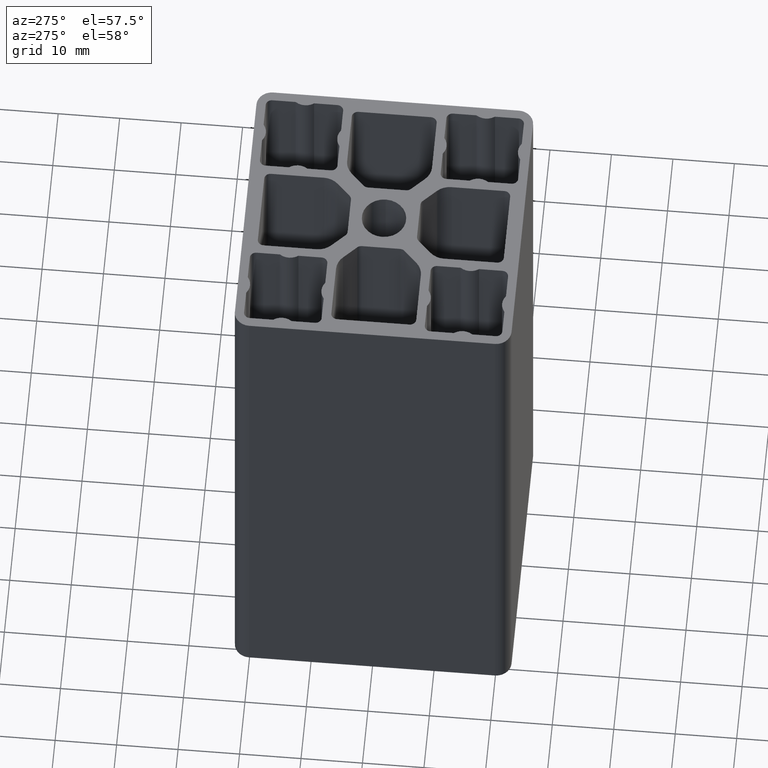
[diagram: clean part render]
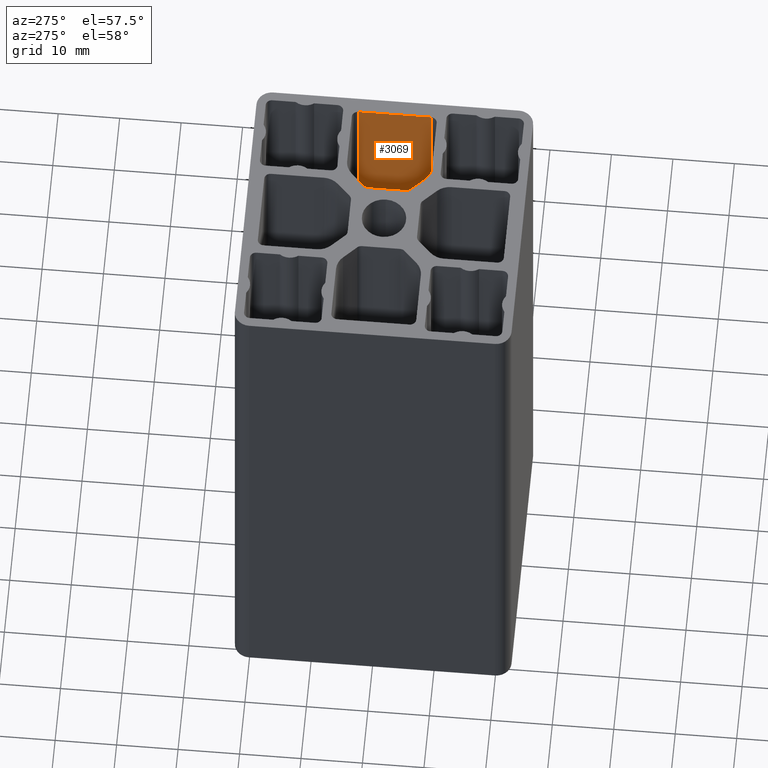
[diagram: same view with one face highlighted and labeled with its STEP entity id]
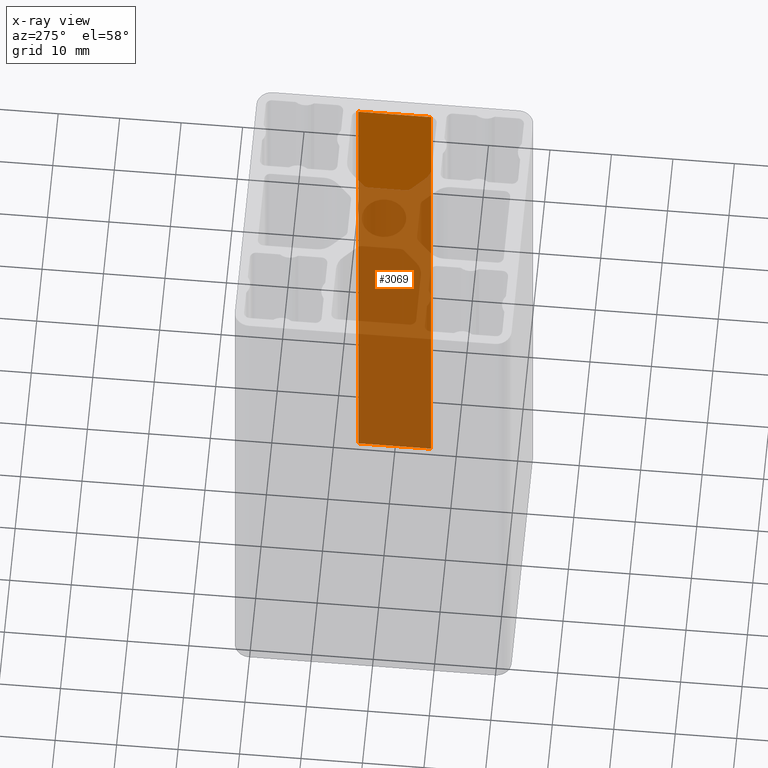
[diagram: x-ray of the same camera — body ghosted, the highlighted face saturated]
A machine part, auxiliary view. The second image highlights one B-rep face of the part: STEP entity #3069.
The next image is the same camera in x-ray: the body ghosted, the highlighted face saturated — about 78% of this face is hidden behind the body in this view.
In plain terms, the highlighted planar face has unit normal (1, 0, 0).
Its self-contained STEP definition (entity closure, byte-faithful):
#454=FACE_OUTER_BOUND('',#610,.T.);
#610=EDGE_LOOP('',(#2512,#2513,#2514,#2515));
#890=LINE('',#5229,#1162);
#891=LINE('',#5233,#1163);
#892=LINE('',#5235,#1164);
#893=LINE('',#5236,#1165);
#1162=VECTOR('',#4304,100.);
#1163=VECTOR('',#4309,11.8);
#1164=VECTOR('',#4310,100.);
#1165=VECTOR('',#4311,11.8);
#1468=VERTEX_POINT('',#5226);
#1469=VERTEX_POINT('',#5228);
#1470=VERTEX_POINT('',#5232);
#1471=VERTEX_POINT('',#5234);
#1913=EDGE_CURVE('',#1469,#1468,#890,.T.);
#1915=EDGE_CURVE('',#1470,#1468,#891,.T.);
#1916=EDGE_CURVE('',#1471,#1470,#892,.T.);
#1917=EDGE_CURVE('',#1469,#1471,#893,.T.);
#2512=ORIENTED_EDGE('',*,*,#1915,.F.);
#2513=ORIENTED_EDGE('',*,*,#1916,.F.);
#2514=ORIENTED_EDGE('',*,*,#1917,.F.);
#2515=ORIENTED_EDGE('',*,*,#1913,.T.);
#2920=PLANE('',#3400);
#3069=ADVANCED_FACE('',(#454),#2920,.F.);
#3400=AXIS2_PLACEMENT_3D('',#5231,#4307,#4308);
#4304=DIRECTION('',(0.,0.,1.));
#4307=DIRECTION('center_axis',(1.,3.40029322965705E-13,0.));
#4308=DIRECTION('ref_axis',(-3.39994699061208E-13,1.,0.));
#4309=DIRECTION('',(3.40029322965705E-13,-1.,0.));
#4310=DIRECTION('',(0.,0.,1.));
#4311=DIRECTION('',(-3.40029322965705E-13,1.,0.));
#5226=CARTESIAN_POINT('',(20.0000000000001,-5.89999999999997,100.));
#5228=CARTESIAN_POINT('',(20.0000000000001,-5.89999999999997,0.));
#5229=CARTESIAN_POINT('',(20.0000000000001,-5.89999999999997,0.));
#5231=CARTESIAN_POINT('Origin',(20.0000000000001,-5.89999999999997,0.));
#5232=CARTESIAN_POINT('',(19.999999999996,5.90000000000004,100.));
#5233=CARTESIAN_POINT('',(19.999999999999,-2.94999999999658,100.));
#5234=CARTESIAN_POINT('',(19.999999999996,5.90000000000004,0.));
#5235=CARTESIAN_POINT('',(19.999999999996,5.90000000000004,0.));
#5236=CARTESIAN_POINT('',(19.999999999999,-2.94999999999658,0.));